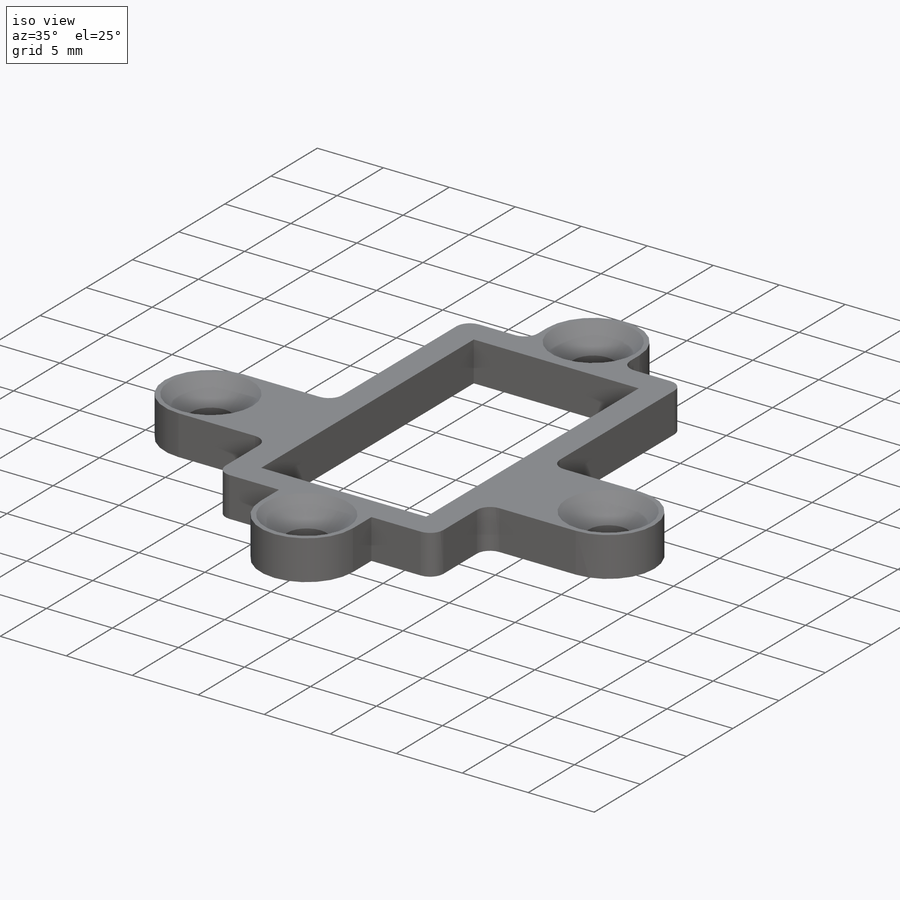
[diagram: iso view]
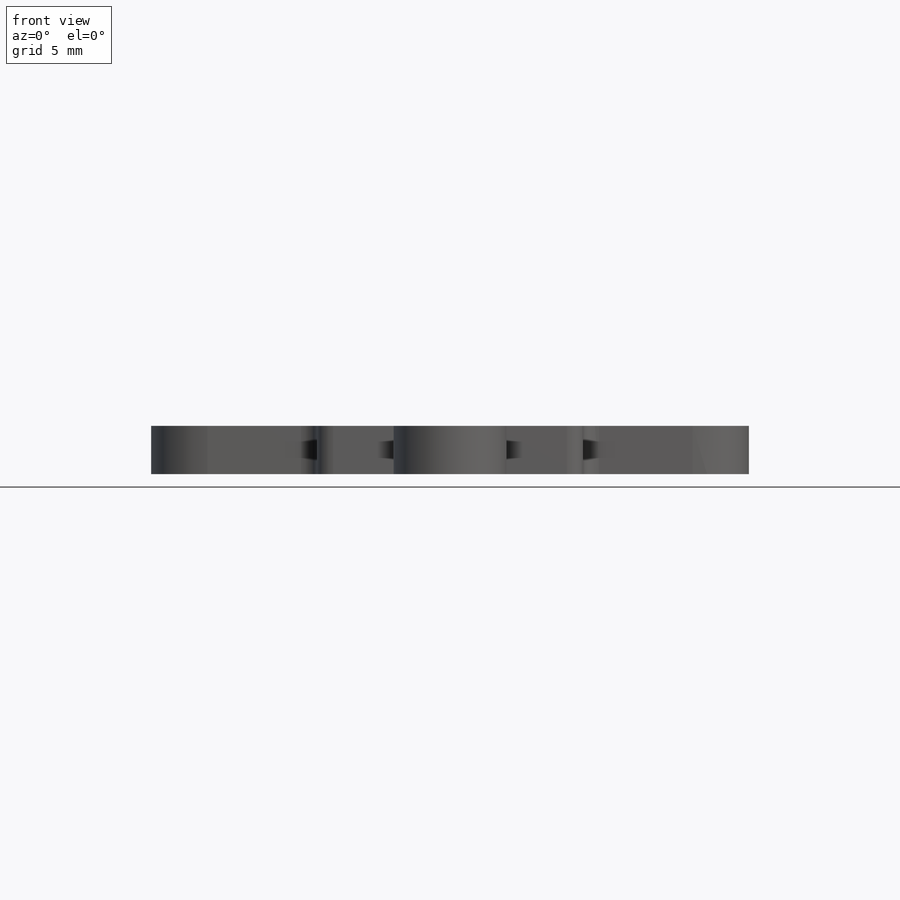
[diagram: front view]
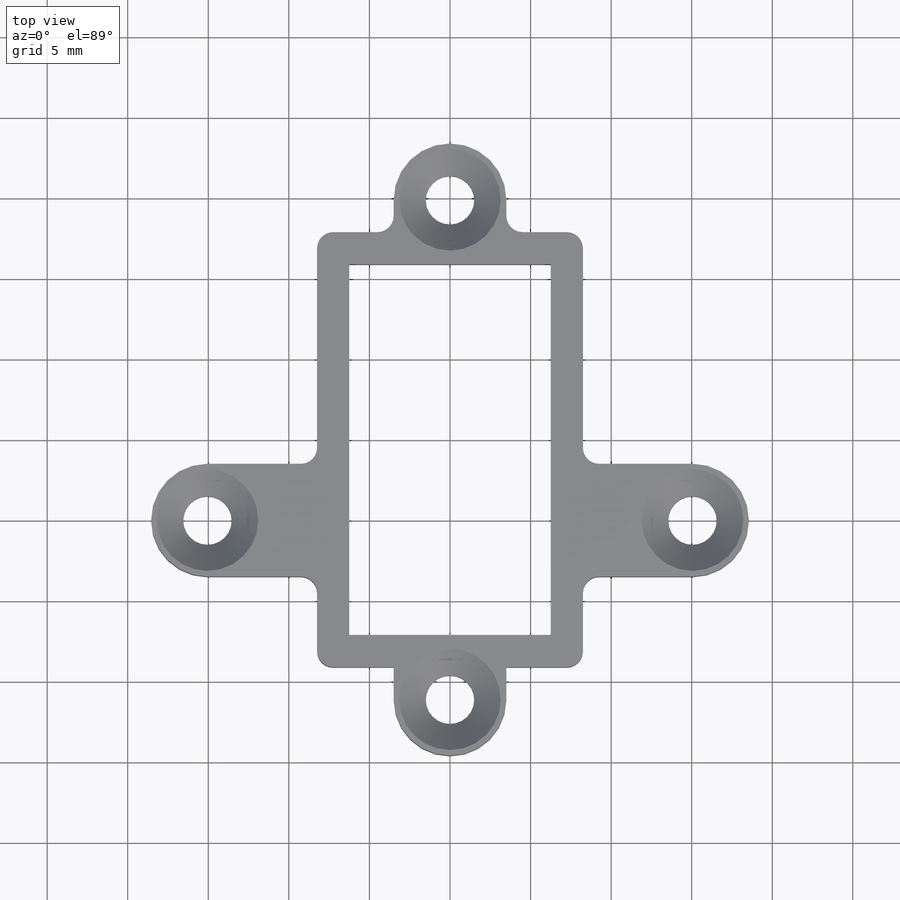
[diagram: top view]
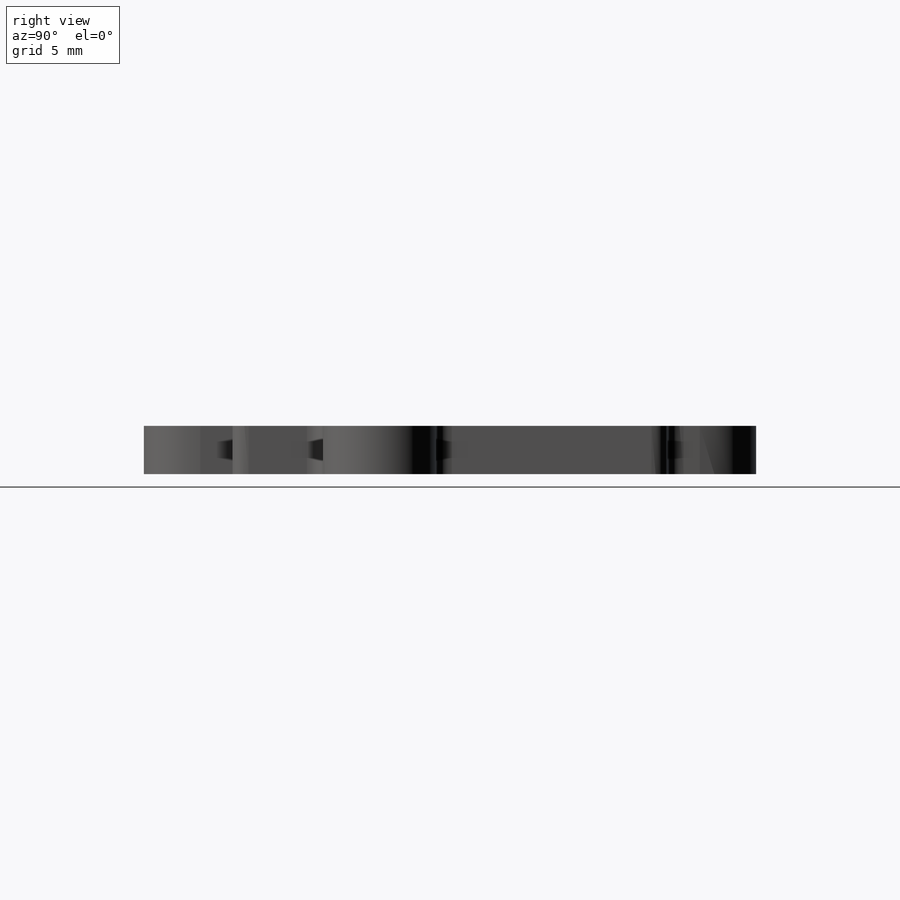
[diagram: right view]
SOLIDWORKS PART (.sldprt)
format: sldprt  version: not decoded by parser v0  size: 250,368 bytes
history: native  units: mm
features: sketch x3, material x1, extrude x1, fillet x1, hole x1 (+12 scaffold rows collapsed)
feature tree (19):
  scaffold x12  (default folders/planes/origin — collapsed)
  material  "Material <not specified>"
  sketch  "Sketch1"  dims[D1=3.0mm D2=30.1mm D3=11.12mm D4=19.88mm D7=4.0mm D8=4.0mm D9=12.5mm D5=2.0mm D6=2.0mm D10=2.0mm]
  extrude  "Boss-Extrude1"  Depth=3mm
  fillet  "Fillet1"  Radius=1mm
  hole  "CSK for M3 Flat Head Machine Screw2"  Diameter=3mm Depth=3mm
  sketch  "Sketch3"
  sketch  "Sketch2"  dims[hole-wizard template sketch: 55 standard entries collapsed; hole parameters kept: c17.Thru Hole Depth=3.0mm c17.Near C'Sink Dia.=6.3mm c17.D4=~3.666174mm c17.Near C'Sink Angle=90.0deg]
decode coverage: 5 of 6 modeling features carry decoded parameters
note: ~ marks probable driven/reference dimensions
note: suppression state not decoded; provenance and decode notes live in map.json
